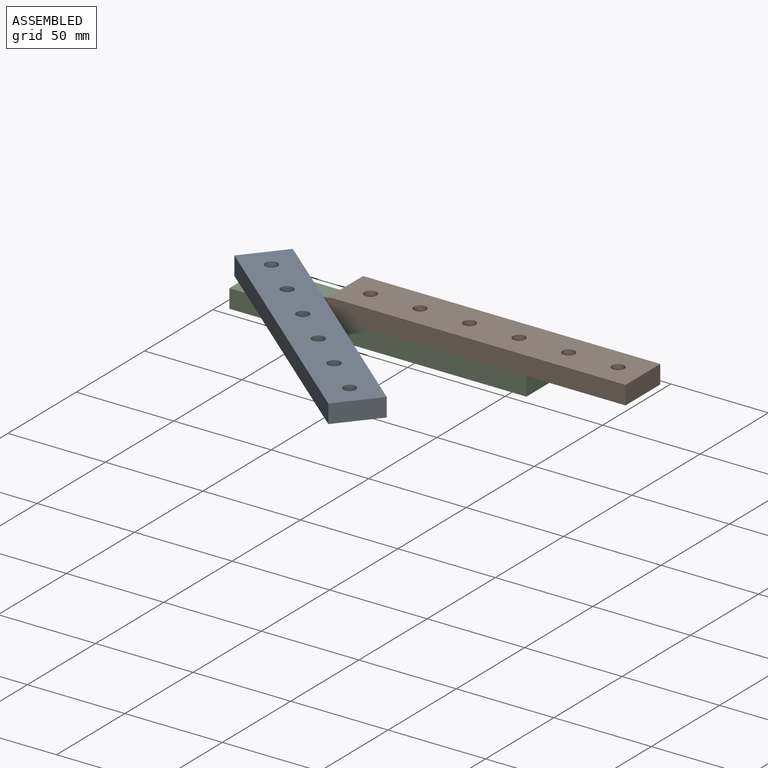
[diagram: assembled view]
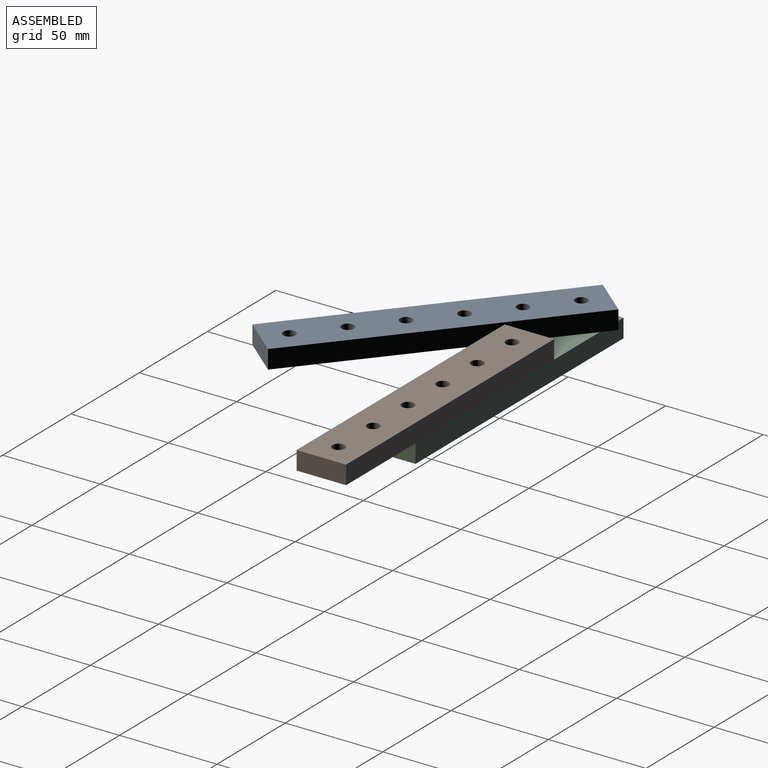
[diagram: assembled view, second angle]
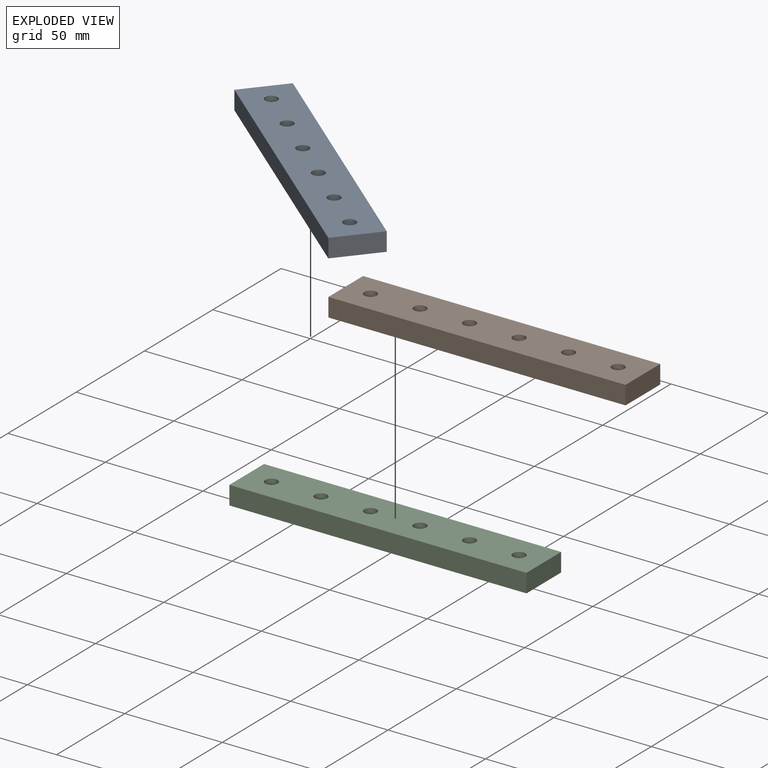
[diagram: exploded view]
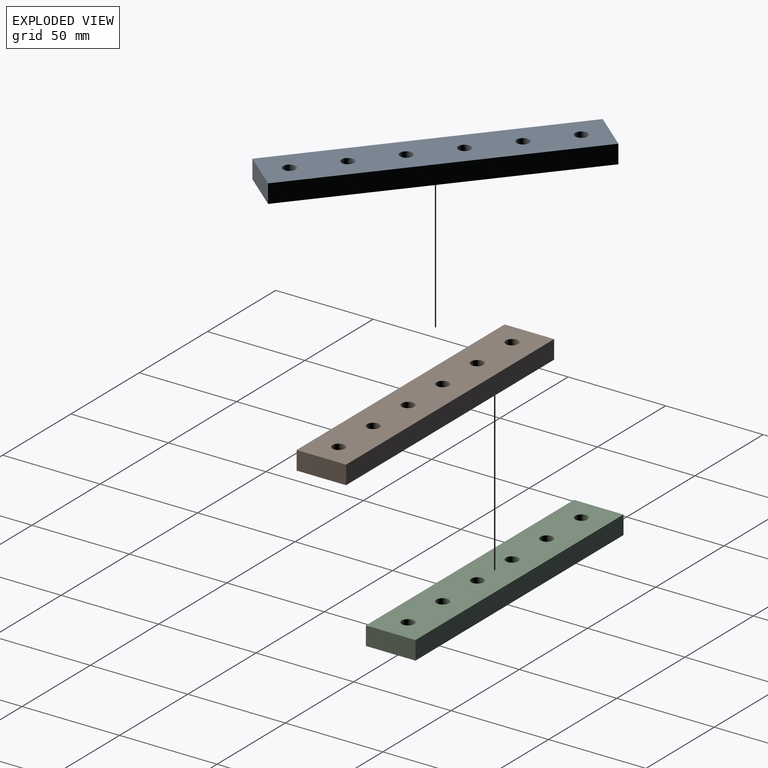
[diagram: exploded view, second angle]
ASSEMBLY  parts=3 mates=2
PART A: 12 faces, bbox 152.4x25.4x9.5 mm
  f0: plane 152.4x9.53mm, normal (0,1,0), area 1451.6mm2, adj f1,f9,f10,f11
  f1: plane 25.4x9.53mm, normal (-1,0,0), area 241.9mm2, adj f0,f2,f10,f11
  f2: plane 152.4x9.53mm, normal (0,-1,0), area 1451.6mm2, adj f1,f9,f10,f11
  f3: cylinder r=3.17mm len=9.53mm, axis (0,0,-1), area 190mm2, adj f10,f11
  f4: cylinder r=3.17mm len=9.53mm, axis (0,0,-1), area 190mm2, adj f10,f11
  f5: cylinder r=3.17mm len=9.53mm, axis (0,0,-1), area 190mm2, adj f10,f11
  f6: cylinder r=3.17mm len=9.53mm, axis (0,0,-1), area 190mm2, adj f10,f11
  f7: cylinder r=3.17mm len=9.53mm, axis (0,0,-1), area 190mm2, adj f10,f11
  f8: cylinder r=3.17mm len=9.53mm, axis (0,0,-1), area 190mm2, adj f10,f11
  f9: plane 25.4x9.53mm, normal (1,0,0), area 241.9mm2, adj f0,f2,f10,f11
  f10: plane 152.4x25.4mm, normal (0,0,1), area 3680.9mm2, adj f0,f1,f2,f3,f4,f5,f6,f7
  f11: plane 152.4x25.4mm, normal (0,0,-1), area 3680.9mm2, adj f0,f1,f2,f3,f4,f5,f6,f7
PART B: same geometry as A
PART C: same geometry as A
PLACE A rot(axis=(-0.34,-0.94,0),180deg) t=(-66.88,-89.83,34.22)mm
PLACE B rot(axis=(1,0,0),180deg) t=(-1.22,-49.01,34.22)mm
PLACE C t=(-52.02,-49.01,15.17)mm
MATE revolute C.f3 <-> A.f8  axis (0,0,1) through (-115.52,-49.01,24.7)mm
MATE fastened C.f5 <-> B.f3  axis (0,0,1) through (-64.72,-49.01,24.7)mm
